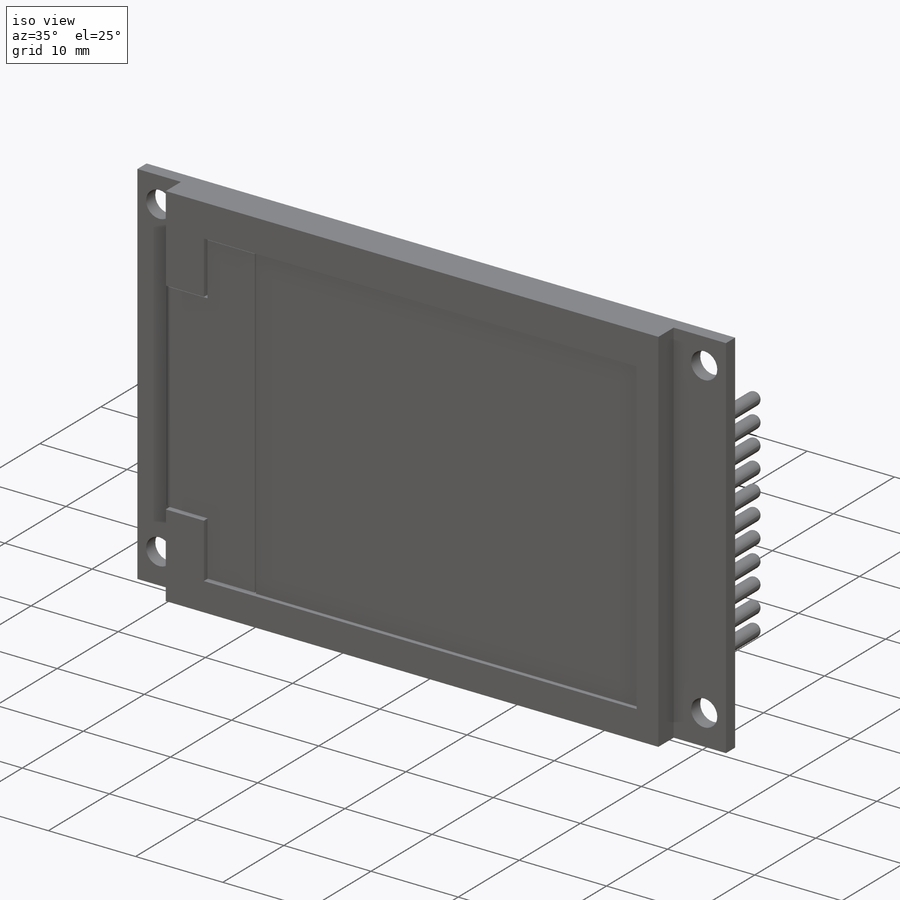
[diagram: iso view]
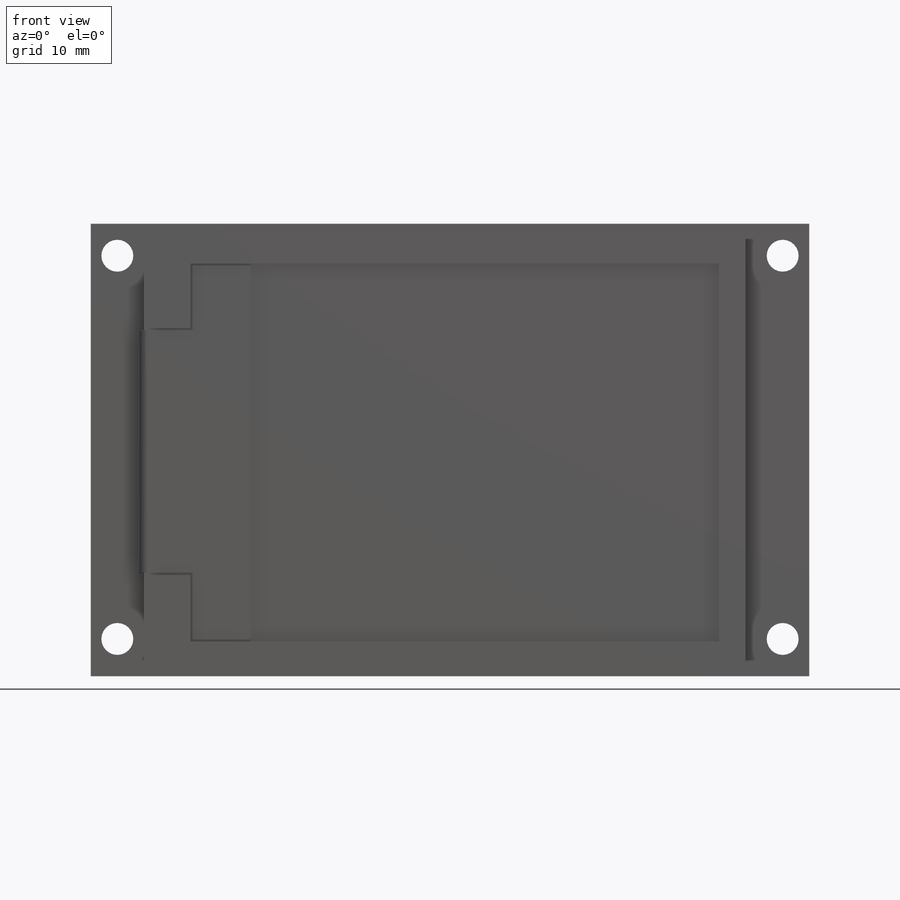
[diagram: front view]
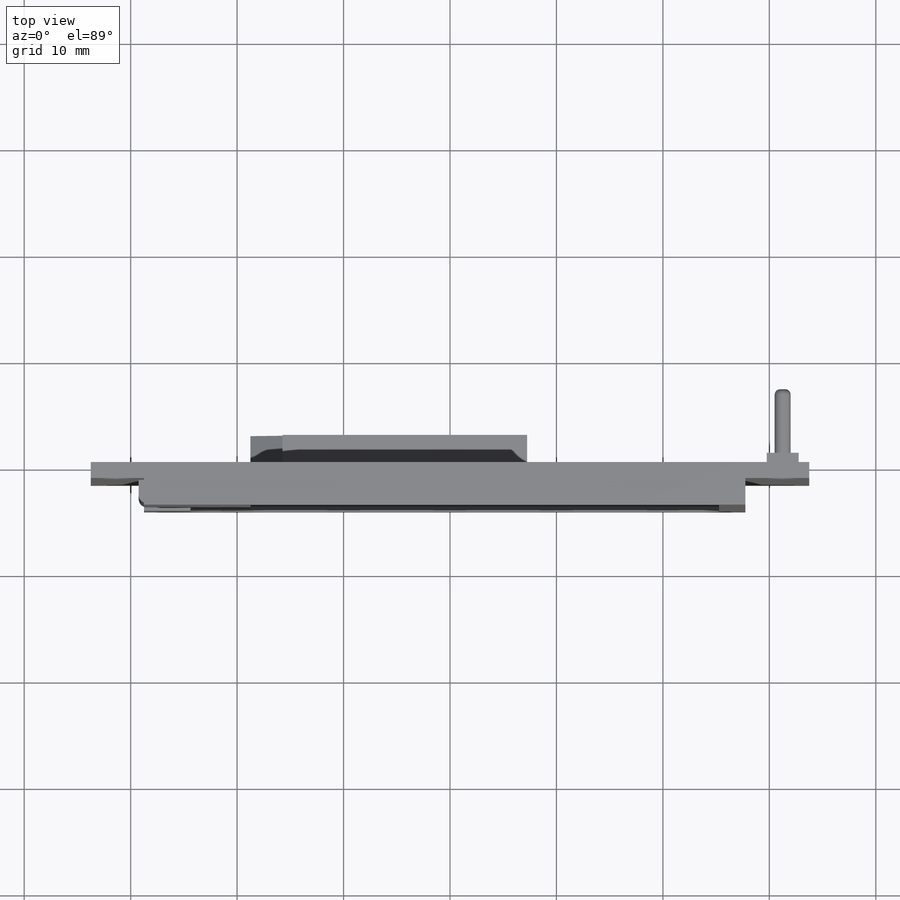
[diagram: top view]
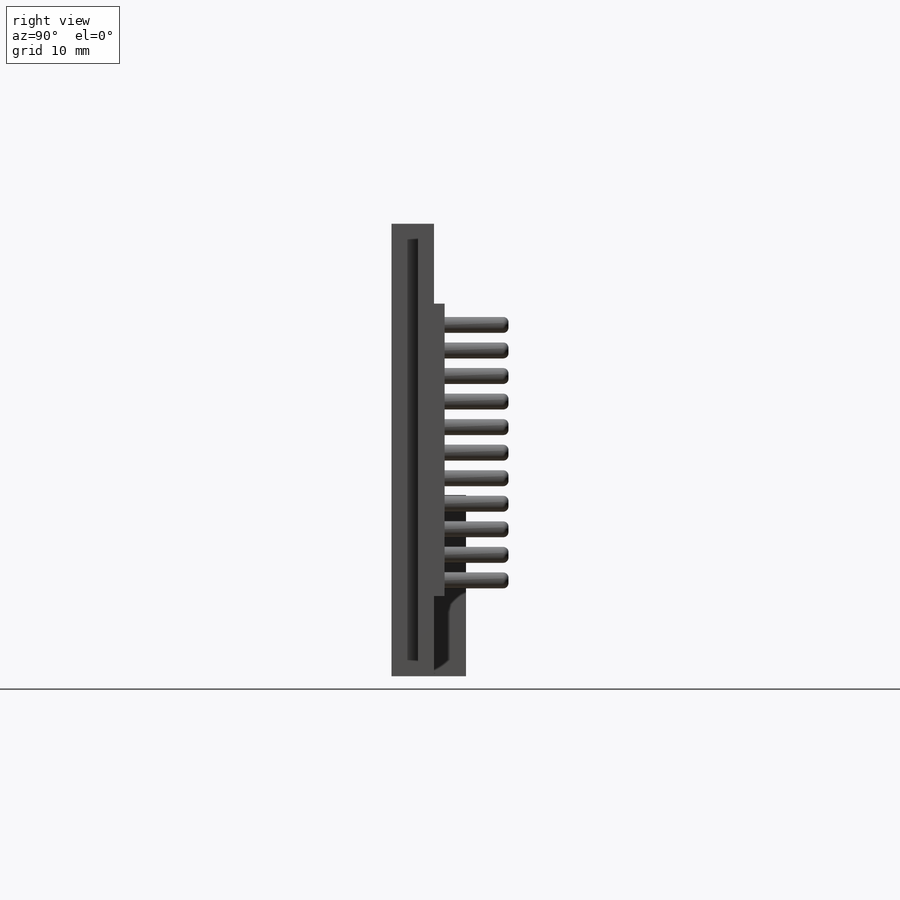
[diagram: right view]
SOLIDWORKS PART (.sldprt)
format: sldprt  version: not decoded by parser v0  size: 463,872 bytes
history: native  units: mm
features: sketch x10, extrude x6, cut_extrude x4, plane x3, fillet x2, material x1, pattern_linear x1 (+10 scaffold rows collapsed)
feature tree (37):
  scaffold x10  (default folders/planes/origin — collapsed)
  material  "Material <nicht angegeben>"
  plane  "Ebene vorne"
  plane  "Ebene oben"
  plane  "Ebene rechts"
  sketch  "Skizze1"  dims[D1=67.5mm D2=42.5mm]
  extrude  "Aufsatz-Linear austragen1"  Depth=1.5mm
  sketch  "Skizze2"  dims[D1=5.0mm D2=6.0mm D3=0.0mm D4=56.5mm]
  extrude  "Aufsatz-Linear austragen2"  Depth=2.5mm
  sketch  "Skizze3"  dims[c1.D1=3.0mm c1.D2=1.5mm c2.D1=3.0mm c2.D2=3.5mm c2.D3=2.5mm c2.D4=2.0]
  cut_extrude  "Schnitt-Linear austragen1"  [1 undecoded]
  pattern_linear  "Lineares Muster1"  Count1=2 Count2=1 Spacing1=62.5mm Spacing2=50mm
  sketch  "Skizze4"  dims[D1=15.0mm D2=10.0mm D3=17.0mm D4=26.0mm D5=3.0mm D6=5.0mm]
  extrude  "Aufsatz-Linear austragen3"  Depth=3mm
  sketch  "Skizze5"  dims[D1=35.5mm D2=44.0mm D3=17.5mm D4=10.0mm]
  cut_extrude  "Schnitt-Linear austragen2"  Depth=0.5mm
  sketch  "Skizze6"  dims[D1=0.0mm D2=35.5mm]
  cut_extrude  "Schnitt-Linear austragen3"  Depth=0.9mm
  sketch  "Skizze7"  dims[c1.D1=0.2mm c1.D2=0.2mm c1.D3=0.2mm c1.D4=0.2mm c1.D5=~6.017812mm c1.D6=~6.017812mm c2.D5=0.2mm c2.D6=0.2mm c2.D7=0.5mm]
  extrude  "Aufsatz-Linear austragen4"  Depth=0.6mm
  fillet  "Verrundung6"  Radius=0.8mm
  sketch  "Skizze8"  dims[D1=0.5mm D2=0.5mm D3=0.5mm D4=0.5mm]
  cut_extrude  "Schnitt-Linear austragen4"  Depth=9.56mm
  sketch  "Skizze9"  dims[D1=7.5mm D2=7.5mm D3=3.0mm D4=1.0mm]
  extrude  "Aufsatz-Linear austragen5"  Depth=1mm
  sketch  "Skizze10"  dims[D1=1.5mm D2=1.5mm D3=1.5mm D4=11.0]
  extrude  "Aufsatz-Linear austragen6"  Depth=6mm
  fillet  "Verrundung18"  Radius=0.5mm
decode coverage: 22 of 23 modeling features carry decoded parameters
note: ~ marks probable driven/reference dimensions
note: 1 parameter value undecoded
note: suppression state not decoded; provenance and decode notes live in map.json
